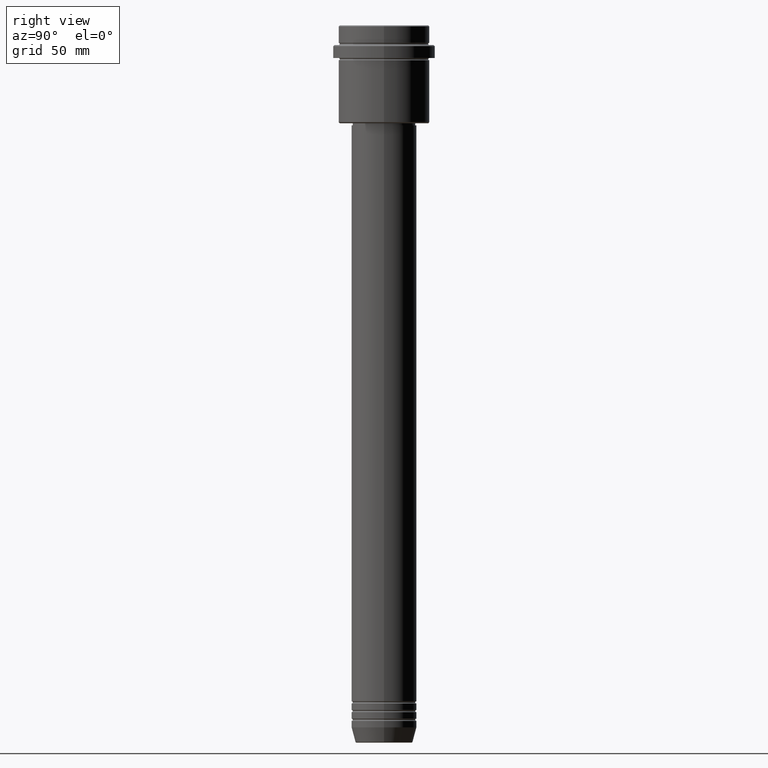
[diagram: clean part render]
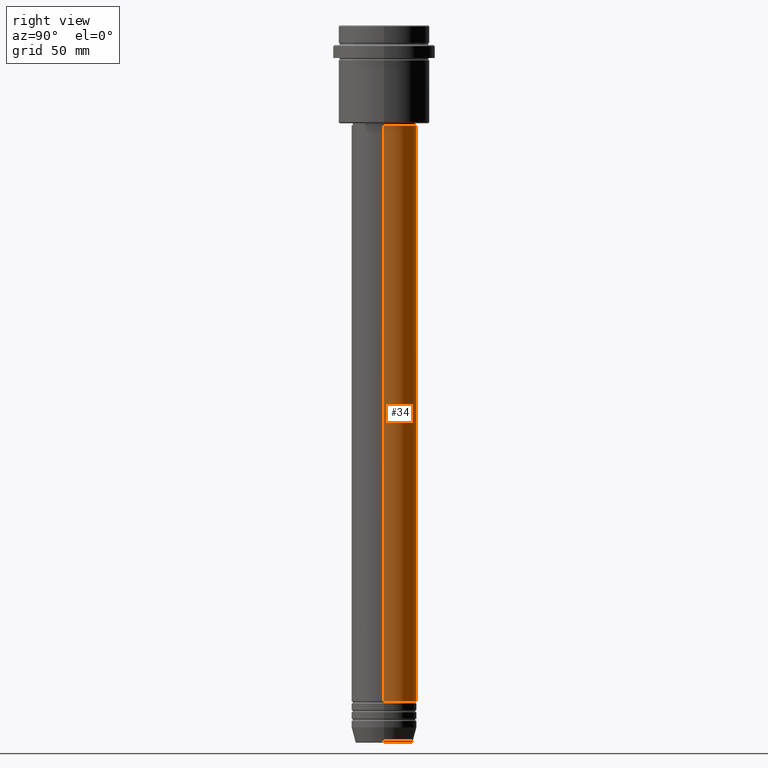
[diagram: same view with one face highlighted and labeled with its STEP entity id]
A machine part, right view. The second image highlights one B-rep face of the part: STEP entity #34.
In plain terms, the highlighted cylindrical surface (edge-blend (fillet) strip) has radius 15 mm, axis along (-0, -0, 1).
Its self-contained STEP definition (entity closure, byte-faithful):
#17 = CARTESIAN_POINT ( 'NONE',  ( 0.000000000000000000, 0.000000000000000000, -46.00000000000001421 ) ) ;
#34 = ADVANCED_FACE ( 'NONE', ( #1340 ), #363, .T. ) ;
#39 = CARTESIAN_POINT ( 'NONE',  ( -15.00000000000000000, 1.836970198721029589E-15, -46.00000000000001421 ) ) ;
#46 = VERTEX_POINT ( 'NONE', #1368 ) ;
#66 = EDGE_CURVE ( 'NONE', #280, #46, #1060, .T. ) ;
#110 = CARTESIAN_POINT ( 'NONE',  ( 0.000000000000000000, 0.000000000000000000, -310.9999999999998863 ) ) ;
#168 = AXIS2_PLACEMENT_3D ( 'NONE', #813, #478, #934 ) ;
#280 = VERTEX_POINT ( 'NONE', #574 ) ;
#329 = VECTOR ( 'NONE', #1035, 1000.000000000000000 ) ;
#349 = ORIENTED_EDGE ( 'NONE', *, *, #807, .F. ) ;
#363 = CYLINDRICAL_SURFACE ( 'NONE', #168, 15.00000000000000000 ) ;
#399 = DIRECTION ( 'NONE',  ( -0.000000000000000000, -0.000000000000000000, 1.000000000000000000 ) ) ;
#478 = DIRECTION ( 'NONE',  ( -0.000000000000000000, -0.000000000000000000, 1.000000000000000000 ) ) ;
#508 = AXIS2_PLACEMENT_3D ( 'NONE', #110, #1306, #640 ) ;
#574 = CARTESIAN_POINT ( 'NONE',  ( 15.00000000000000000, 0.000000000000000000, -310.9999999999998863 ) ) ;
#595 = CARTESIAN_POINT ( 'NONE',  ( -15.00000000000000000, 1.836970198721029589E-15, 0.000000000000000000 ) ) ;
#609 = EDGE_CURVE ( 'NONE', #280, #642, #1158, .T. ) ;
#640 = DIRECTION ( 'NONE',  ( 1.000000000000000000, 0.000000000000000000, 0.000000000000000000 ) ) ;
#642 = VERTEX_POINT ( 'NONE', #1325 ) ;
#672 = ORIENTED_EDGE ( 'NONE', *, *, #609, .T. ) ;
#678 = EDGE_LOOP ( 'NONE', ( #672, #1255, #349, #1274 ) ) ;
#744 = CARTESIAN_POINT ( 'NONE',  ( 15.00000000000000000, 0.000000000000000000, 0.000000000000000000 ) ) ;
#807 = EDGE_CURVE ( 'NONE', #46, #1167, #1178, .T. ) ;
#813 = CARTESIAN_POINT ( 'NONE',  ( 0.000000000000000000, 0.000000000000000000, 0.000000000000000000 ) ) ;
#849 = LINE ( 'NONE', #595, #329 ) ;
#896 = DIRECTION ( 'NONE',  ( -0.000000000000000000, -0.000000000000000000, 1.000000000000000000 ) ) ;
#929 = VECTOR ( 'NONE', #399, 1000.000000000000000 ) ;
#934 = DIRECTION ( 'NONE',  ( 1.000000000000000000, 0.000000000000000000, 0.000000000000000000 ) ) ;
#953 = EDGE_CURVE ( 'NONE', #642, #1167, #849, .T. ) ;
#1035 = DIRECTION ( 'NONE',  ( -0.000000000000000000, -0.000000000000000000, 1.000000000000000000 ) ) ;
#1060 = LINE ( 'NONE', #744, #929 ) ;
#1069 = AXIS2_PLACEMENT_3D ( 'NONE', #17, #896, #1336 ) ;
#1158 = CIRCLE ( 'NONE', #508, 15.00000000000000000 ) ;
#1167 = VERTEX_POINT ( 'NONE', #39 ) ;
#1178 = CIRCLE ( 'NONE', #1069, 15.00000000000000000 ) ;
#1255 = ORIENTED_EDGE ( 'NONE', *, *, #953, .T. ) ;
#1274 = ORIENTED_EDGE ( 'NONE', *, *, #66, .F. ) ;
#1306 = DIRECTION ( 'NONE',  ( -0.000000000000000000, -0.000000000000000000, 1.000000000000000000 ) ) ;
#1325 = CARTESIAN_POINT ( 'NONE',  ( -15.00000000000000000, 1.836970198721029589E-15, -310.9999999999998863 ) ) ;
#1336 = DIRECTION ( 'NONE',  ( 1.000000000000000000, 0.000000000000000000, 0.000000000000000000 ) ) ;
#1340 = FACE_OUTER_BOUND ( 'NONE', #678, .T. ) ;
#1368 = CARTESIAN_POINT ( 'NONE',  ( 15.00000000000000000, 0.000000000000000000, -46.00000000000001421 ) ) ;